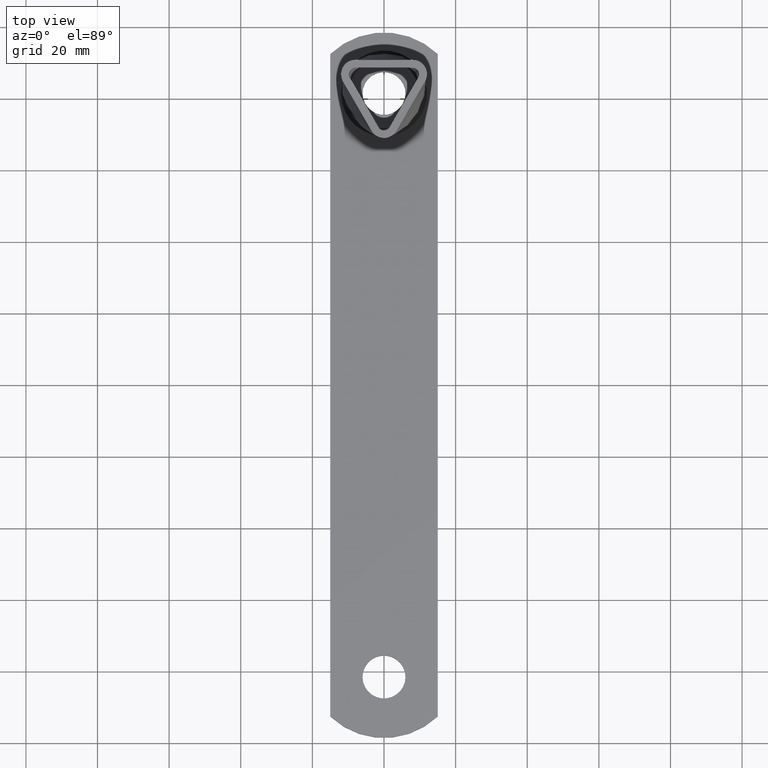
[diagram: clean part render]
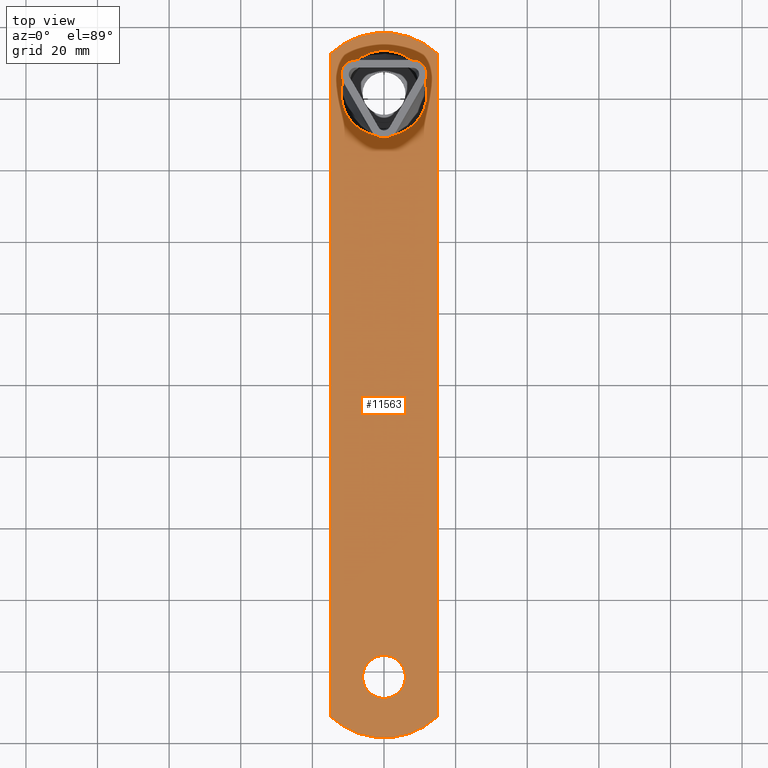
[diagram: same view with one face highlighted and labeled with its STEP entity id]
A machine part, top view. The second image highlights one B-rep face of the part: STEP entity #11563.
In plain terms, the highlighted planar face has unit normal (-0, 0, -1).
Its self-contained STEP definition (entity closure, byte-faithful):
#213 = DIRECTION ( 'NONE',  ( -1.000000000000000000, 0.000000000000000000, 0.000000000000000000 ) ) ;
#555 = LINE ( 'NONE', #14071, #7711 ) ;
#608 = CARTESIAN_POINT ( 'NONE',  ( 4.906775124411571376, 70.45535358263663284, 2.499999999999981792 ) ) ;
#666 = CARTESIAN_POINT ( 'NONE',  ( 2.905315791166148021, 69.83838413616943797, 2.499999999999981792 ) ) ;
#792 = EDGE_LOOP ( 'NONE', ( #11057 ) ) ;
#923 = EDGE_CURVE ( 'NONE', #3908, #3908, #3889, .T. ) ;
#1167 = CARTESIAN_POINT ( 'NONE',  ( -1.444854977224095672E-14, 76.74999999999994316, 2.500000000000000000 ) ) ;
#1358 = DIRECTION ( 'NONE',  ( -1.000000000000000000, 0.000000000000000000, 0.000000000000000000 ) ) ;
#1544 = DIRECTION ( 'NONE',  ( 1.000000000000000000, 0.000000000000000000, 0.000000000000000000 ) ) ;
#1694 = CARTESIAN_POINT ( 'NONE',  ( 11.84002208216850782, 79.53997394070383109, 2.499999999999983125 ) ) ;
#1914 = CARTESIAN_POINT ( 'NONE',  ( 11.81849371913208024, 79.41827262166258095, 2.500000000000002220 ) ) ;
#1970 = VERTEX_POINT ( 'NONE', #17734 ) ;
#2115 = CARTESIAN_POINT ( 'NONE',  ( 11.27271697588979293, 85.68426285150579247, 2.499999999999980904 ) ) ;
#2181 = CARTESIAN_POINT ( 'NONE',  ( 10.80359044725986806, 86.74722191829498286, 2.499999999999981792 ) ) ;
#2456 = CARTESIAN_POINT ( 'NONE',  ( 15.00000000000003730, 92.50000000000000000, 2.500000000000000000 ) ) ;
#2673 = DIRECTION ( 'NONE',  ( 0.000000000000000000, 0.000000000000000000, 1.000000000000000000 ) ) ;
#2792 = AXIS2_PLACEMENT_3D ( 'NONE', #11482, #12917, #1544 ) ;
#2948 = ORIENTED_EDGE ( 'NONE', *, *, #16354, .T. ) ;
#3154 = CARTESIAN_POINT ( 'NONE',  ( 6.000000000000005329, -81.50000000000000000, 2.500000000000000000 ) ) ;
#3369 = EDGE_CURVE ( 'NONE', #9280, #9280, #8122, .T. ) ;
#3481 = CARTESIAN_POINT ( 'NONE',  ( -12.16677104907627616, 79.76961887787558680, 2.499999999999982236 ) ) ;
#3540 = CARTESIAN_POINT ( 'NONE',  ( 9.946022704167940987, 88.23257282026239068, 2.499999999999981348 ) ) ;
#3607 = CARTESIAN_POINT ( 'NONE',  ( -7.581939534526832780, 71.82845775053289117, 2.499999999999982236 ) ) ;
#3670 = CARTESIAN_POINT ( 'NONE',  ( -2.012680562429441711, 69.64540930345448544, 2.499999999999981348 ) ) ;
#3889 = CIRCLE ( 'NONE', #8152, 6.000000000000005329 ) ;
#3908 = VERTEX_POINT ( 'NONE', #3154 ) ;
#4272 = CARTESIAN_POINT ( 'NONE',  ( 15.00000000000000533, -92.50000000000001421, 2.500000000000000000 ) ) ;
#4745 = CARTESIAN_POINT ( 'NONE',  ( 11.81849371913208202, 79.41827262166258095, 2.499999999999983125 ) ) ;
#4924 = CARTESIAN_POINT ( 'NONE',  ( 11.81849371913208202, 79.41827262166258095, 2.499999999999983125 ) ) ;
#4987 = CARTESIAN_POINT ( 'NONE',  ( -4.584831514549479792, 92.90192337159126623, 2.499999999999986677 ) ) ;
#5058 = CARTESIAN_POINT ( 'NONE',  ( 11.57747021606089000, 78.05575015796787852, 2.499999999999982236 ) ) ;
#5116 = CARTESIAN_POINT ( 'NONE',  ( -11.69864865183993174, 84.17238090862882416, 2.499999999999981348 ) ) ;
#5517 = CARTESIAN_POINT ( 'NONE',  ( -14.99999999999998224, -92.50000000000000000, 2.500000000000000000 ) ) ;
#5768 = FACE_OUTER_BOUND ( 'NONE', #14148, .T. ) ;
#5776 = VERTEX_POINT ( 'NONE', #2456 ) ;
#5802 = EDGE_LOOP ( 'NONE', ( #11820 ) ) ;
#5834 = VERTEX_POINT ( 'NONE', #5517 ) ;
#5855 = DIRECTION ( 'NONE',  ( 3.000602769257179759E-16, -1.000000000000000000, 0.000000000000000000 ) ) ;
#6296 = CARTESIAN_POINT ( 'NONE',  ( 8.646597691669798635, 89.84688521308123654, 2.499999999999981792 ) ) ;
#6363 = CARTESIAN_POINT ( 'NONE',  ( -8.646597691669791530, 89.84688521308123654, 2.499999999999981792 ) ) ;
#6428 = CARTESIAN_POINT ( 'NONE',  ( -1.219727444046192685E-15, 69.48976571255576573, 2.499999999999981348 ) ) ;
#6490 = CARTESIAN_POINT ( 'NONE',  ( 10.40116799832961547, 87.50511714372201766, 2.499999999999982236 ) ) ;
#6841 = EDGE_CURVE ( 'NONE', #5834, #13430, #9414, .T. ) ;
#6946 = DIRECTION ( 'NONE',  ( 0.000000000000000000, 0.000000000000000000, 1.000000000000000000 ) ) ;
#7134 = DIRECTION ( 'NONE',  ( 1.000000000000000000, 0.000000000000000000, 0.000000000000000000 ) ) ;
#7470 = AXIS2_PLACEMENT_3D ( 'NONE', #1167, #2673, #1358 ) ;
#7711 = VECTOR ( 'NONE', #18351, 1000.000000000000000 ) ;
#7792 = CARTESIAN_POINT ( 'NONE',  ( -10.80359044725986273, 86.74722191829502549, 2.499999999999982236 ) ) ;
#8112 = EDGE_CURVE ( 'NONE', #5776, #1970, #17696, .T. ) ;
#8122 = B_SPLINE_CURVE_WITH_KNOTS ( 'NONE', 3,
 ( #4745, #1694, #14761, #9062, #12127, #2115, #2181, #6490, #3540, #14886, #6296, #14953, #13555, #10820, #4987, #13618, #6363, #17722, #12184, #15013, #7792, #17854, #16392, #5116, #9181, #3481, #9249, #3607, #13486, #9126, #3670, #12064, #6428, #16459, #16526, #666, #608, #13421, #9315, #5058, #4924 ),
 .UNSPECIFIED., .T., .F.,
 ( 4, 1, 2, 1, 1, 1, 1, 1, 2, 1, 1, 1, 2, 1, 1, 1, 1, 1, 3, 1, 1, 1, 2, 1, 1, 1, 1, 1, 2, 1, 1, 4 ),
 ( 0.000000000000000000, 0.0003541438293050890246, 0.004673149556643683110, 0.006655580505660434881, 0.007646795980168811201, 0.008638011454677187520, 0.009629226929185564707, 0.01062044240369394016, 0.01260287335271069280, 0.01692187908004930477, 0.02124088480738789766, 0.02555989053472650790, 0.02987889626206511814, 0.03186132721108185517, 0.03285254268559022889, 0.03384375816009860954, 0.03483497363460698326, 0.03582618910911535698, 0.03780862005813211135, 0.04212762578547070424, 0.04644663151280930408, 0.05076563724014791085, 0.05508464296748650374, 0.05706707391650325117, 0.05805828939101163183, 0.05904950486552000555, 0.06004072034002837926, 0.06103193581453675992, 0.06301436676355351429, 0.06733337249089210719, 0.07165237821823071396, 0.07561724011626420883 ),
 .UNSPECIFIED. ) ;
#8152 = AXIS2_PLACEMENT_3D ( 'NONE', #8569, #6946, #7134 ) ;
#8439 = FACE_BOUND ( 'NONE', #792, .T. ) ;
#8569 = CARTESIAN_POINT ( 'NONE',  ( 0.000000000000000000, -81.50000000000000000, 2.500000000000000000 ) ) ;
#9062 = CARTESIAN_POINT ( 'NONE',  ( 12.01833193545924239, 82.77293130028370172, 2.499999999999981792 ) ) ;
#9126 = CARTESIAN_POINT ( 'NONE',  ( -2.905315791166152461, 69.83838413616943797, 2.499999999999981792 ) ) ;
#9181 = CARTESIAN_POINT ( 'NONE',  ( -12.01833193545924416, 82.77293130028370172, 2.499999999999981792 ) ) ;
#9249 = CARTESIAN_POINT ( 'NONE',  ( -10.65243998679268422, 75.34981090609912258, 2.499999999999981792 ) ) ;
#9280 = VERTEX_POINT ( 'NONE', #1914 ) ;
#9315 = CARTESIAN_POINT ( 'NONE',  ( 10.56851644383729827, 75.25356456534572658, 2.499999999999976907 ) ) ;
#9414 = CIRCLE ( 'NONE', #2792, 21.74999999999999289 ) ;
#9528 = ORIENTED_EDGE ( 'NONE', *, *, #6841, .T. ) ;
#10023 = ORIENTED_EDGE ( 'NONE', *, *, #17618, .T. ) ;
#10223 = PLANE ( 'NONE',  #17588 ) ;
#10820 = CARTESIAN_POINT ( 'NONE',  ( -3.851859888774471268E-31, 93.80037818780218117, 2.499999999999975131 ) ) ;
#11057 = ORIENTED_EDGE ( 'NONE', *, *, #923, .F. ) ;
#11482 = CARTESIAN_POINT ( 'NONE',  ( 1.409874627518390129E-14, -76.75000000000001421, 2.500000000000000000 ) ) ;
#11563 = ADVANCED_FACE ( 'NONE', ( #15863, #5768, #8439 ), #10223, .F. ) ;
#11820 = ORIENTED_EDGE ( 'NONE', *, *, #3369, .F. ) ;
#12064 = CARTESIAN_POINT ( 'NONE',  ( -0.8575677430919358413, 69.52020526144256962, 2.499999999999981348 ) ) ;
#12127 = CARTESIAN_POINT ( 'NONE',  ( 11.55191348283593733, 84.81473065074929707, 2.499999999999981792 ) ) ;
#12184 = CARTESIAN_POINT ( 'NONE',  ( -9.946022704167932105, 88.23257282026239068, 2.499999999999981348 ) ) ;
#12895 = DIRECTION ( 'NONE',  ( -0.000000000000000000, 0.000000000000000000, -1.000000000000000000 ) ) ;
#12917 = DIRECTION ( 'NONE',  ( 0.000000000000000000, 0.000000000000000000, 1.000000000000000000 ) ) ;
#13421 = CARTESIAN_POINT ( 'NONE',  ( 7.581939534526850544, 71.82845775053293380, 2.499999999999987121 ) ) ;
#13430 = VERTEX_POINT ( 'NONE', #4272 ) ;
#13486 = CARTESIAN_POINT ( 'NONE',  ( -4.906775124411576705, 70.45535358263664705, 2.499999999999981792 ) ) ;
#13555 = CARTESIAN_POINT ( 'NONE',  ( 4.584831514549431830, 92.90192337159120939, 2.499999999999981792 ) ) ;
#13618 = CARTESIAN_POINT ( 'NONE',  ( -7.111556811047674564, 91.27171511707967966, 2.499999999999982236 ) ) ;
#14071 = CARTESIAN_POINT ( 'NONE',  ( 15.00000000000001599, -92.50000000000000000, 2.500000000000000000 ) ) ;
#14148 = EDGE_LOOP ( 'NONE', ( #17554, #2948, #9528, #10023 ) ) ;
#14761 = CARTESIAN_POINT ( 'NONE',  ( 12.09863724434053900, 81.14814436999544967, 2.499999999999984013 ) ) ;
#14886 = CARTESIAN_POINT ( 'NONE',  ( 9.260036413460364102, 89.17032784503989262, 2.499999999999980460 ) ) ;
#14953 = CARTESIAN_POINT ( 'NONE',  ( 7.111556811047678117, 91.27171511707966545, 2.499999999999981348 ) ) ;
#15013 = CARTESIAN_POINT ( 'NONE',  ( -10.40116799832960126, 87.50511714372213135, 2.499999999999984013 ) ) ;
#15117 = VECTOR ( 'NONE', #5855, 1000.000000000000000 ) ;
#15422 = CARTESIAN_POINT ( 'NONE',  ( -1.444854977224095672E-14, 76.74999999999994316, 2.500000000000000000 ) ) ;
#15573 = LINE ( 'NONE', #17162, #15117 ) ;
#15863 = FACE_BOUND ( 'NONE', #5802, .T. ) ;
#16354 = EDGE_CURVE ( 'NONE', #1970, #5834, #15573, .T. ) ;
#16392 = CARTESIAN_POINT ( 'NONE',  ( -11.55191348283594088, 84.81473065074929707, 2.499999999999981348 ) ) ;
#16459 = CARTESIAN_POINT ( 'NONE',  ( 0.8575677430919309563, 69.52020526144255541, 2.499999999999980904 ) ) ;
#16526 = CARTESIAN_POINT ( 'NONE',  ( 2.012680562429433717, 69.64540930345447123, 2.499999999999980904 ) ) ;
#17162 = CARTESIAN_POINT ( 'NONE',  ( -15.00000000000003730, 92.50000000000000000, 2.500000000000000000 ) ) ;
#17554 = ORIENTED_EDGE ( 'NONE', *, *, #8112, .T. ) ;
#17588 = AXIS2_PLACEMENT_3D ( 'NONE', #15422, #12895, #213 ) ;
#17618 = EDGE_CURVE ( 'NONE', #13430, #5776, #555, .T. ) ;
#17696 = CIRCLE ( 'NONE', #7470, 21.75000000000006750 ) ;
#17722 = CARTESIAN_POINT ( 'NONE',  ( -9.260036413460369431, 89.17032784503973630, 2.499999999999978684 ) ) ;
#17734 = CARTESIAN_POINT ( 'NONE',  ( -15.00000000000003730, 92.50000000000000000, 2.500000000000000000 ) ) ;
#17854 = CARTESIAN_POINT ( 'NONE',  ( -11.27271697588980182, 85.68426285150569299, 2.499999999999979128 ) ) ;
#18351 = DIRECTION ( 'NONE',  ( 1.125226038471442533E-16, 1.000000000000000000, 0.000000000000000000 ) ) ;